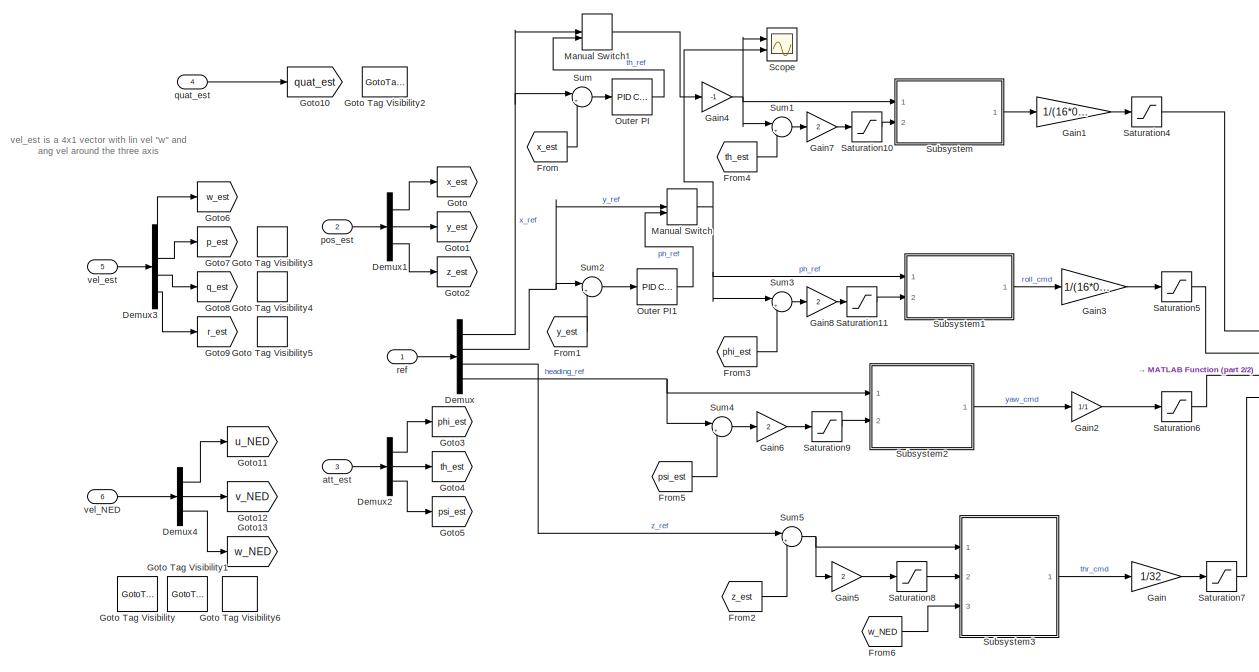
[diagram: root canvas - part 1/2, most of the canvas]
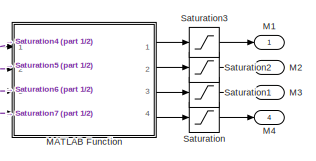
[diagram: root canvas - part 2/2, middle right region]
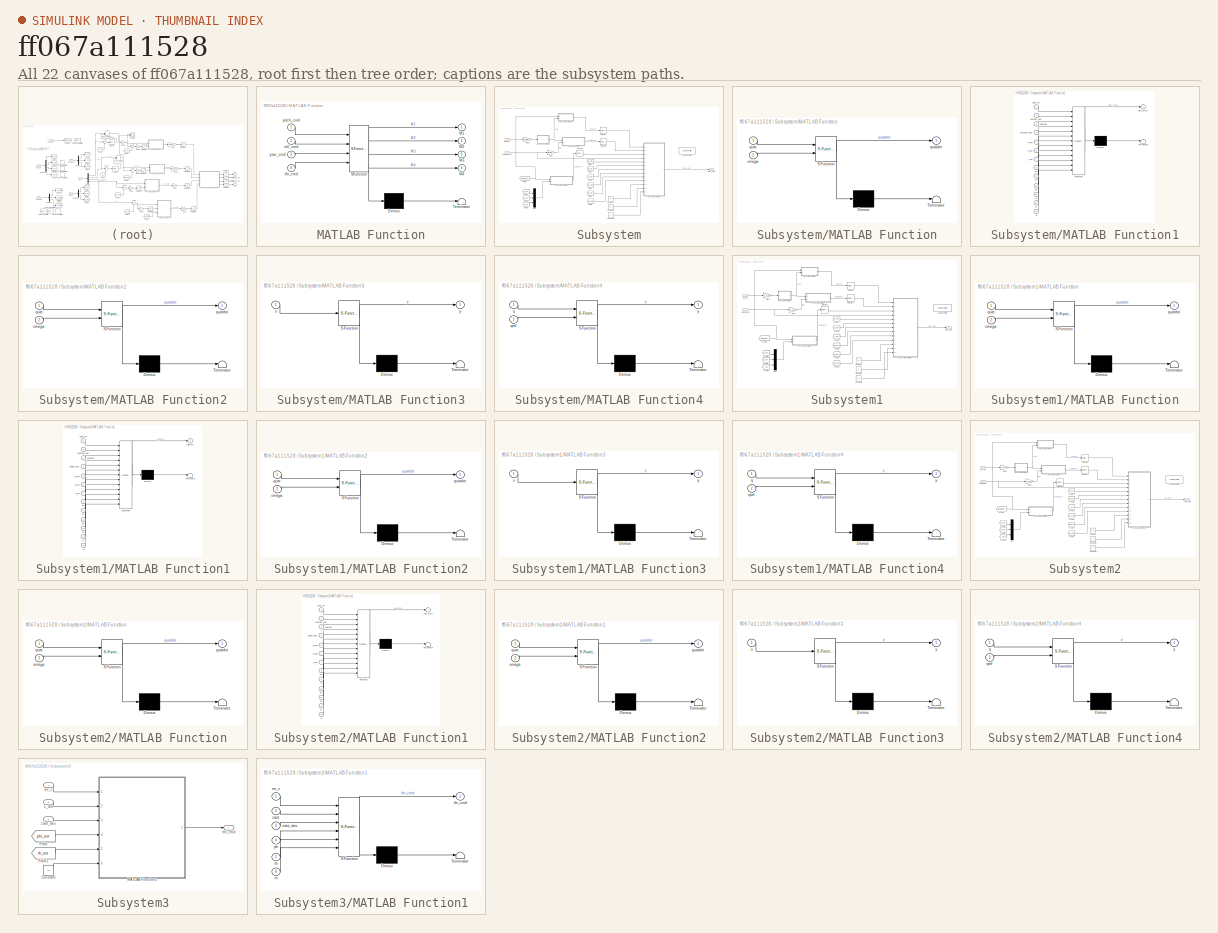
[diagram: thumbnail index - all 22 canvases of the model, root first then tree order]
MODEL slx_ff067a111528
KIND model
CONFIG AbsTol = auto
CONFIG EnableMultiTasking = off
CONFIG FixedStep = 0.01
CONFIG MaxStep = auto
CONFIG MinStep = auto
CONFIG RelTol = 1e-3
CONFIG SampleTimeConstraint = Unconstrained
CONFIG Solver = FixedStepDiscrete
CONFIG SolverName = FixedStepDiscrete
CONFIG StartTime = 0.0
CONFIG StopTime = 10.0
BLOCK [Demux] Demux
  DisplayOption = bar
  Ports = [1, 4]
BLOCK [Demux] Demux1
  DisplayOption = bar
  Outputs = 3
  Ports = [1, 3]
BLOCK [Demux] Demux2
  DisplayOption = bar
  Outputs = 3
  Ports = [1, 3]
BLOCK [Demux] Demux3
  DisplayOption = bar
  Ports = [1, 4]
BLOCK [Demux] Demux4
  DisplayOption = bar
  Outputs = 3
  Ports = [1, 3]
BLOCK [From] From
  GotoTag = x_est
BLOCK [From] From1
  GotoTag = y_est
BLOCK [From] From2
  GotoTag = z_est
BLOCK [From] From3
  GotoTag = phi_est
  TagVisibility = scoped
BLOCK [From] From4
  GotoTag = th_est
  TagVisibility = scoped
BLOCK [From] From5
  GotoTag = psi_est
  TagVisibility = scoped
BLOCK [From] From6
  GotoTag = w_NED
BLOCK [Gain] Gain
  Gain = 1/32
  OutDataTypeStr = Inherit: Inherit via internal rule
  ParamDataTypeStr = Inherit: Inherit via internal rule
  SaturateOnIntegerOverflow = off
BLOCK [Gain] Gain1
  Gain = 1/(16*0.2)
  OutDataTypeStr = Inherit: Inherit via internal rule
  ParamDataTypeStr = Inherit: Inherit via internal rule
  SaturateOnIntegerOverflow = off
BLOCK [Gain] Gain2
  Gain = 1/1
  OutDataTypeStr = Inherit: Inherit via internal rule
  ParamDataTypeStr = Inherit: Inherit via internal rule
  SaturateOnIntegerOverflow = off
BLOCK [Gain] Gain3
  Gain = 1/(16*0.2)
  OutDataTypeStr = Inherit: Inherit via internal rule
  ParamDataTypeStr = Inherit: Inherit via internal rule
  SaturateOnIntegerOverflow = off
BLOCK [Gain] Gain4
  Gain = -1
  OutDataTypeStr = Inherit: Inherit via internal rule
  ParamDataTypeStr = Inherit: Inherit via internal rule
  SaturateOnIntegerOverflow = off
BLOCK [Gain] Gain5
  Gain = 2
  OutDataTypeStr = Inherit: Inherit via internal rule
  ParamDataTypeStr = Inherit: Inherit via internal rule
  SaturateOnIntegerOverflow = off
BLOCK [Gain] Gain6
  Gain = 2
  OutDataTypeStr = Inherit: Inherit via internal rule
  ParamDataTypeStr = Inherit: Inherit via internal rule
  SaturateOnIntegerOverflow = off
BLOCK [Gain] Gain7
  Gain = 2
  OutDataTypeStr = Inherit: Inherit via internal rule
  ParamDataTypeStr = Inherit: Inherit via internal rule
  SaturateOnIntegerOverflow = off
BLOCK [Gain] Gain8
  Gain = 2
  OutDataTypeStr = Inherit: Inherit via internal rule
  ParamDataTypeStr = Inherit: Inherit via internal rule
  SaturateOnIntegerOverflow = off
BLOCK [Goto] Goto
  GotoTag = x_est
BLOCK [GotoTagVisibility] Goto Tag Visibility
  GotoTag = phi_est
BLOCK [GotoTagVisibility] Goto Tag Visibility1
  GotoTag = th_est
BLOCK [GotoTagVisibility] Goto Tag Visibility2
  GotoTag = quat_est
BLOCK [GotoTagVisibility] Goto Tag Visibility3
  GotoTag = p_est
BLOCK [GotoTagVisibility] Goto Tag Visibility4
  GotoTag = q_est
BLOCK [GotoTagVisibility] Goto Tag Visibility5
  GotoTag = r_est
BLOCK [GotoTagVisibility] Goto Tag Visibility6
  GotoTag = psi_est
BLOCK [Goto] Goto1
  GotoTag = y_est
BLOCK [Goto] Goto10
  GotoTag = quat_est
  TagVisibility = scoped
BLOCK [Goto] Goto11
  GotoTag = u_NED
BLOCK [Goto] Goto12
  GotoTag = v_NED
BLOCK [Goto] Goto13
  GotoTag = w_NED
BLOCK [Goto] Goto2
  GotoTag = z_est
BLOCK [Goto] Goto3
  GotoTag = phi_est
  TagVisibility = scoped
BLOCK [Goto] Goto4
  GotoTag = th_est
  TagVisibility = scoped
BLOCK [Goto] Goto5
  GotoTag = psi_est
  TagVisibility = scoped
BLOCK [Goto] Goto6
  GotoTag = w_est
BLOCK [Goto] Goto7
  GotoTag = p_est
  TagVisibility = scoped
BLOCK [Goto] Goto8
  GotoTag = q_est
  TagVisibility = scoped
BLOCK [Goto] Goto9
  GotoTag = r_est
  TagVisibility = scoped
BLOCK [Outport] M1
  IconDisplay = Port number
BLOCK [Outport] M2
  IconDisplay = Port number
  Port = 2
BLOCK [Outport] M3
  IconDisplay = Port number
  Port = 3
BLOCK [Outport] M4
  IconDisplay = Port number
  Port = 4
BLOCK [SubSystem] MATLAB Function
  ErrorFcn = Stateflow.Translate.translate
  PermitHierarchicalResolution = ExplicitOnly
  Ports = [4, 4]
  RequestExecContextInheritance = off
  SFBlockType = MATLAB Function
  TreatAsAtomicUnit = on
BLOCK [Demux] MATLAB Function/ Demux 
  Outputs = 1
  Ports = [1, 1]
BLOCK [S-Function] MATLAB Function/ SFunction 
  EnableBusSupport = on
  FunctionName = sf_sfun
  PortCounts = [4 5]
  Ports = [4, 5]
  SFcnIsStateOwnerBlock = off
  SFunctionDeploymentMode = off
  Tag = Stateflow S-Function feedback_control 2
BLOCK [Terminator] MATLAB Function/ Terminator 
BLOCK [Outport] MATLAB Function/M1
  IconDisplay = Port number
BLOCK [Outport] MATLAB Function/M2
  IconDisplay = Port number
  Port = 2
BLOCK [Outport] MATLAB Function/M3
  IconDisplay = Port number
  Port = 3
BLOCK [Outport] MATLAB Function/M4
  IconDisplay = Port number
  Port = 4
BLOCK [Inport] MATLAB Function/pitch_cmd
  IconDisplay = Port number
BLOCK [Inport] MATLAB Function/roll_cmd
  IconDisplay = Port number
  Port = 2
BLOCK [Inport] MATLAB Function/thr_cmd
  IconDisplay = Port number
  Port = 4
BLOCK [Inport] MATLAB Function/yaw_cmd
  IconDisplay = Port number
  Port = 3
BLOCK [ManualSwitch] Manual Switch
  CurrentSetting = 0
BLOCK [ManualSwitch] Manual Switch1
  CurrentSetting = 0
BLOCK [Reference] Outer PI  REF=simulink/Continuous/PID Controller
  Ports = [1, 1]
  SourceBlock = simulink/Continuous/PID Controller
  SourceProductBaseCode = SL
  SourceProductName = Simulink
  SourceType = PID 1dof
BLOCK [Reference] Outer PI1  REF=simulink/Continuous/PID Controller
  Ports = [1, 1]
  SourceBlock = simulink/Continuous/PID Controller
  SourceProductBaseCode = SL
  SourceProductName = Simulink
  SourceType = PID 1dof
BLOCK [Saturate] Saturation
  InputPortMap = u0
  LowerLimit = 0
  Ports = [1, 1]
  UpperLimit = 2000
BLOCK [Saturate] Saturation1
  InputPortMap = u0
  LowerLimit = 0
  Ports = [1, 1]
  UpperLimit = 2000
BLOCK [Saturate] Saturation10
  InputPortMap = u0
  LowerLimit = -1
  Ports = [1, 1]
  UpperLimit = 1
BLOCK [Saturate] Saturation11
  InputPortMap = u0
  LowerLimit = -1
  Ports = [1, 1]
  UpperLimit = 1
BLOCK [Saturate] Saturation2
  InputPortMap = u0
  LowerLimit = 0
  Ports = [1, 1]
  UpperLimit = 2000
BLOCK [Saturate] Saturation3
  InputPortMap = u0
  LowerLimit = 1000
  Ports = [1, 1]
  UpperLimit = 2000
BLOCK [Saturate] Saturation4
  InputPortMap = u0
  LowerLimit = -1
  Ports = [1, 1]
  UpperLimit = 1
BLOCK [Saturate] Saturation5
  InputPortMap = u0
  LowerLimit = -1
  Ports = [1, 1]
  UpperLimit = 1
BLOCK [Saturate] Saturation6
  InputPortMap = u0
  LowerLimit = -1
  Ports = [1, 1]
  UpperLimit = 1
BLOCK [Saturate] Saturation7
  InputPortMap = u0
  LowerLimit = 0
  Ports = [1, 1]
  UpperLimit = 1
BLOCK [Saturate] Saturation8
  InputPortMap = u0
  LowerLimit = -10
  Ports = [1, 1]
  UpperLimit = 10
BLOCK [Saturate] Saturation9
  InputPortMap = u0
  Ports = [1, 1]
BLOCK [Scope] Scope
  Floating = off
  NumInputPorts = 2
  Ports = [2]
  ScopeSpecificationString = Simulink.scopes.TimeScopeBlockCfg('CurrentConfiguration', extmgr.ConfigurationSet(extmgr.Configuration('Core','General UI',true),extmgr.Configuration('Core','Source UI',true),extmgr.Configuration('Sources','WiredSimulink',true),extmgr.Configuration('Visuals','Time Domain',true,'SerializedDisplays',{struct('MinYLimReal','-0.63697','MaxYLimReal','0.49676','YLabelReal','','MinYLimMag','0.00000','MaxY...<+1390ch>
BLOCK [SubSystem] Subsystem
  Ports = [2, 1]
  RequestExecContextInheritance = off
BLOCK [Constant] Subsystem/Constant
  Value = Jx
BLOCK [Constant] Subsystem/Constant1
  Value = Jy
BLOCK [Constant] Subsystem/Constant2
  Value = Jz
BLOCK [From] Subsystem/From
  GotoTag = p_est
  TagVisibility = scoped
BLOCK [From] Subsystem/From1
  GotoTag = q_est
  TagVisibility = scoped
BLOCK [From] Subsystem/From2
  GotoTag = r_est
  TagVisibility = scoped
BLOCK [From] Subsystem/From3
  GotoTag = ph_est
BLOCK [From] Subsystem/From4
  GotoTag = th_est
  TagVisibility = scoped
BLOCK [From] Subsystem/From5
  GotoTag = psi_est
  TagVisibility = scoped
BLOCK [From] Subsystem/From6
  GotoTag = p_est
  TagVisibility = scoped
BLOCK [From] Subsystem/From7
  GotoTag = q_est
  TagVisibility = scoped
BLOCK [From] Subsystem/From8
  GotoTag = r_est
  TagVisibility = scoped
BLOCK [From] Subsystem/From9
  GotoTag = quat_est
  TagVisibility = scoped
BLOCK [Gain] Subsystem/Gain1
  Gain = [0;1;0]
  OutDataTypeStr = Inherit: Inherit via internal rule
  ParamDataTypeStr = Inherit: Inherit via internal rule
  SaturateOnIntegerOverflow = off
BLOCK [Gain] Subsystem/Gain2
  Gain = [0,1,0]
  OutDataTypeStr = Inherit: Inherit via internal rule
  ParamDataTypeStr = Inherit: Inherit via internal rule
  SaturateOnIntegerOverflow = off
BLOCK [Reference] Subsystem/Lowpass Filter  REF=dspfdesign/Lowpass Filter
  Ports = [1, 1]
  SourceBlock = dspfdesign/Lowpass Filter
  SourceProductBaseCode = DS
  SourceProductName = DSP System Toolbox
  SourceType = dsp.LowpassFilter
BLOCK [SubSystem] Subsystem/MATLAB Function
  ErrorFcn = Stateflow.Translate.translate
  PermitHierarchicalResolution = ExplicitOnly
  Ports = [2, 1]
  RequestExecContextInheritance = off
  SFBlockType = MATLAB Function
  TreatAsAtomicUnit = on
BLOCK [Demux] Subsystem/MATLAB Function/ Demux 
  Outputs = 1
  Ports = [1, 1]
BLOCK [S-Function] Subsystem/MATLAB Function/ SFunction 
  EnableBusSupport = on
  FunctionName = sf_sfun
  PortCounts = [2 2]
  Ports = [2, 2]
  SFcnIsStateOwnerBlock = off
  SFunctionDeploymentMode = off
  Tag = Stateflow S-Function feedback_control 1
BLOCK [Terminator] Subsystem/MATLAB Function/ Terminator 
BLOCK [Inport] Subsystem/MATLAB Function/omega
  IconDisplay = Port number
  Port = 2
BLOCK [Inport] Subsystem/MATLAB Function/quat
  IconDisplay = Port number
BLOCK [Outport] Subsystem/MATLAB Function/quatdot
  IconDisplay = Port number
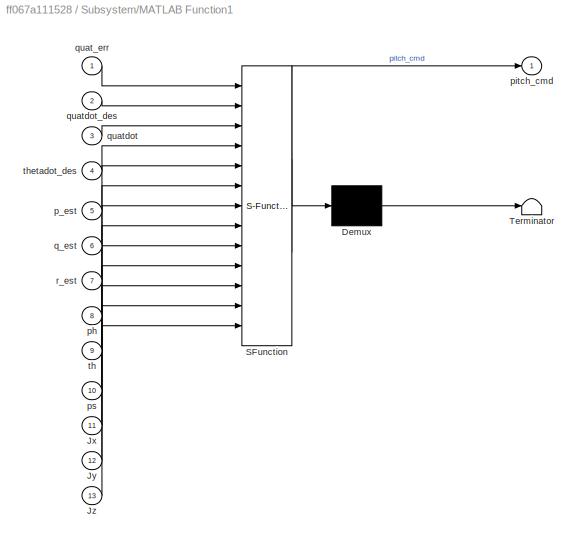
BLOCK [SubSystem] Subsystem/MATLAB Function1
  ErrorFcn = Stateflow.Translate.translate
  PermitHierarchicalResolution = ExplicitOnly
  Ports = [13, 1]
  RequestExecContextInheritance = off
  SFBlockType = MATLAB Function
  TreatAsAtomicUnit = on
BLOCK [Demux] Subsystem/MATLAB Function1/ Demux 
  Outputs = 1
  Ports = [1, 1]
BLOCK [S-Function] Subsystem/MATLAB Function1/ SFunction 
  EnableBusSupport = on
  FunctionName = sf_sfun
  PortCounts = [13 2]
  Ports = [13, 2]
  SFcnIsStateOwnerBlock = off
  SFunctionDeploymentMode = off
  Tag = Stateflow S-Function feedback_control 10
BLOCK [Terminator] Subsystem/MATLAB Function1/ Terminator 
BLOCK [Inport] Subsystem/MATLAB Function1/Jx
  IconDisplay = Port number
  Port = 11
BLOCK [Inport] Subsystem/MATLAB Function1/Jy
  IconDisplay = Port number
  Port = 12
BLOCK [Inport] Subsystem/MATLAB Function1/Jz
  IconDisplay = Port number
  Port = 13
BLOCK [Inport] Subsystem/MATLAB Function1/p_est
  IconDisplay = Port number
  Port = 5
BLOCK [Inport] Subsystem/MATLAB Function1/ph
  IconDisplay = Port number
  Port = 8
BLOCK [Outport] Subsystem/MATLAB Function1/pitch_cmd
  IconDisplay = Port number
BLOCK [Inport] Subsystem/MATLAB Function1/ps
  IconDisplay = Port number
  Port = 10
BLOCK [Inport] Subsystem/MATLAB Function1/q_est
  IconDisplay = Port number
  Port = 6
BLOCK [Inport] Subsystem/MATLAB Function1/quat_err
  IconDisplay = Port number
BLOCK [Inport] Subsystem/MATLAB Function1/quatdot
  IconDisplay = Port number
  Port = 3
BLOCK [Inport] Subsystem/MATLAB Function1/quatdot_des
  IconDisplay = Port number
  Port = 2
BLOCK [Inport] Subsystem/MATLAB Function1/r_est
  IconDisplay = Port number
  Port = 7
BLOCK [Inport] Subsystem/MATLAB Function1/th
  IconDisplay = Port number
  Port = 9
BLOCK [Inport] Subsystem/MATLAB Function1/thetadot_des
  IconDisplay = Port number
  Port = 4
BLOCK [SubSystem] Subsystem/MATLAB Function2
  ErrorFcn = Stateflow.Translate.translate
  PermitHierarchicalResolution = ExplicitOnly
  Ports = [2, 1]
  RequestExecContextInheritance = off
  SFBlockType = MATLAB Function
  TreatAsAtomicUnit = on
BLOCK [Demux] Subsystem/MATLAB Function2/ Demux 
  Outputs = 1
  Ports = [1, 1]
BLOCK [S-Function] Subsystem/MATLAB Function2/ SFunction 
  EnableBusSupport = on
  FunctionName = sf_sfun
  PortCounts = [2 2]
  Ports = [2, 2]
  SFcnIsStateOwnerBlock = off
  SFunctionDeploymentMode = off
  Tag = Stateflow S-Function feedback_control 11
BLOCK [Terminator] Subsystem/MATLAB Function2/ Terminator 
BLOCK [Inport] Subsystem/MATLAB Function2/omega
  IconDisplay = Port number
  Port = 2
BLOCK [Inport] Subsystem/MATLAB Function2/quat
  IconDisplay = Port number
BLOCK [Outport] Subsystem/MATLAB Function2/quatdot
  IconDisplay = Port number
BLOCK [SubSystem] Subsystem/MATLAB Function3
  ErrorFcn = Stateflow.Translate.translate
  PermitHierarchicalResolution = ExplicitOnly
  Ports = [1, 1]
  RequestExecContextInheritance = off
  SFBlockType = MATLAB Function
  TreatAsAtomicUnit = on
BLOCK [Demux] Subsystem/MATLAB Function3/ Demux 
  Outputs = 1
  Ports = [1, 1]
BLOCK [S-Function] Subsystem/MATLAB Function3/ SFunction 
  EnableBusSupport = on
  FunctionName = sf_sfun
  PortCounts = [1 2]
  Ports = [1, 2]
  SFcnIsStateOwnerBlock = off
  SFunctionDeploymentMode = off
  Tag = Stateflow S-Function feedback_control 12
BLOCK [Terminator] Subsystem/MATLAB Function3/ Terminator 
BLOCK [Inport] Subsystem/MATLAB Function3/u
  IconDisplay = Port number
BLOCK [Outport] Subsystem/MATLAB Function3/y
  IconDisplay = Port number
BLOCK [SubSystem] Subsystem/MATLAB Function4
  ErrorFcn = Stateflow.Translate.translate
  PermitHierarchicalResolution = ExplicitOnly
  Ports = [2, 1]
  RequestExecContextInheritance = off
  SFBlockType = MATLAB Function
  TreatAsAtomicUnit = on
BLOCK [Demux] Subsystem/MATLAB Function4/ Demux 
  Outputs = 1
  Ports = [1, 1]
BLOCK [S-Function] Subsystem/MATLAB Function4/ SFunction 
  EnableBusSupport = on
  FunctionName = sf_sfun
  PortCounts = [2 2]
  Ports = [2, 2]
  SFcnIsStateOwnerBlock = off
  SFunctionDeploymentMode = off
  Tag = Stateflow S-Function feedback_control 13
BLOCK [Terminator] Subsystem/MATLAB Function4/ Terminator 
BLOCK [Inport] Subsystem/MATLAB Function4/q
  IconDisplay = Port number
BLOCK [Inport] Subsystem/MATLAB Function4/qref
  IconDisplay = Port number
  Port = 2
BLOCK [Outport] Subsystem/MATLAB Function4/y
  IconDisplay = Port number
BLOCK [Mux] Subsystem/Mux
  DisplayOption = bar
  Inputs = 3
  Ports = [3, 1]
BLOCK [Selector] Subsystem/Selector
  IndexOptions = Index vector (dialog)
  Indices = 3
  InputPortWidth = 4
  OutputSizes = 1
  Ports = [1, 1]
BLOCK [Selector] Subsystem/Selector1
  IndexOptions = Index vector (dialog)
  Indices = 3
  InputPortWidth = 4
  OutputSizes = 1
  Ports = [1, 1]
BLOCK [Selector] Subsystem/Selector2
  IndexOptions = Index vector (dialog)
  Indices = 3
  InputPortWidth = 4
  OutputSizes = 1
  Ports = [1, 1]
BLOCK [Outport] Subsystem/pitch_cmd
  IconDisplay = Port number
BLOCK [Inport] Subsystem/theta_ref
  IconDisplay = Port number
BLOCK [Inport] Subsystem/thetadot_des
  IconDisplay = Port number
  Port = 2
BLOCK [SubSystem] Subsystem1
  Ports = [2, 1]
  RequestExecContextInheritance = off
BLOCK [Constant] Subsystem1/Constant
  Value = Jx
BLOCK [Constant] Subsystem1/Constant1
  Value = Jy
BLOCK [Constant] Subsystem1/Constant2
  Value = Jz
BLOCK [From] Subsystem1/From
  GotoTag = p_est
  TagVisibility = scoped
BLOCK [From] Subsystem1/From1
  GotoTag = q_est
  TagVisibility = scoped
BLOCK [From] Subsystem1/From2
  GotoTag = r_est
  TagVisibility = scoped
BLOCK [From] Subsystem1/From3
  GotoTag = ph_est
BLOCK [From] Subsystem1/From4
  GotoTag = th_est
  TagVisibility = scoped
BLOCK [From] Subsystem1/From5
  GotoTag = psi_est
  TagVisibility = scoped
BLOCK [From] Subsystem1/From6
  GotoTag = p_est
  TagVisibility = scoped
BLOCK [From] Subsystem1/From7
  GotoTag = q_est
  TagVisibility = scoped
BLOCK [From] Subsystem1/From8
  GotoTag = r_est
  TagVisibility = scoped
BLOCK [From] Subsystem1/From9
  GotoTag = quat_est
  TagVisibility = scoped
BLOCK [Gain] Subsystem1/Gain1
  Gain = [1;0;0]
  OutDataTypeStr = Inherit: Inherit via internal rule
  ParamDataTypeStr = Inherit: Inherit via internal rule
  SaturateOnIntegerOverflow = off
BLOCK [Gain] Subsystem1/Gain2
  Gain = [1,0,0]
  OutDataTypeStr = Inherit: Inherit via internal rule
  ParamDataTypeStr = Inherit: Inherit via internal rule
  SaturateOnIntegerOverflow = off
BLOCK [Reference] Subsystem1/Lowpass Filter  REF=dspfdesign/Lowpass Filter
  Ports = [1, 1]
  SourceBlock = dspfdesign/Lowpass Filter
  SourceProductBaseCode = DS
  SourceProductName = DSP System Toolbox
  SourceType = dsp.LowpassFilter
BLOCK [SubSystem] Subsystem1/MATLAB Function
  ErrorFcn = Stateflow.Translate.translate
  PermitHierarchicalResolution = ExplicitOnly
  Ports = [2, 1]
  RequestExecContextInheritance = off
  SFBlockType = MATLAB Function
  TreatAsAtomicUnit = on
BLOCK [Demux] Subsystem1/MATLAB Function/ Demux 
  Outputs = 1
  Ports = [1, 1]
BLOCK [S-Function] Subsystem1/MATLAB Function/ SFunction 
  EnableBusSupport = on
  FunctionName = sf_sfun
  PortCounts = [2 2]
  Ports = [2, 2]
  SFcnIsStateOwnerBlock = off
  SFunctionDeploymentMode = off
  Tag = Stateflow S-Function feedback_control 3
BLOCK [Terminator] Subsystem1/MATLAB Function/ Terminator 
BLOCK [Inport] Subsystem1/MATLAB Function/omega
  IconDisplay = Port number
  Port = 2
BLOCK [Inport] Subsystem1/MATLAB Function/quat
  IconDisplay = Port number
BLOCK [Outport] Subsystem1/MATLAB Function/quatdot
  IconDisplay = Port number
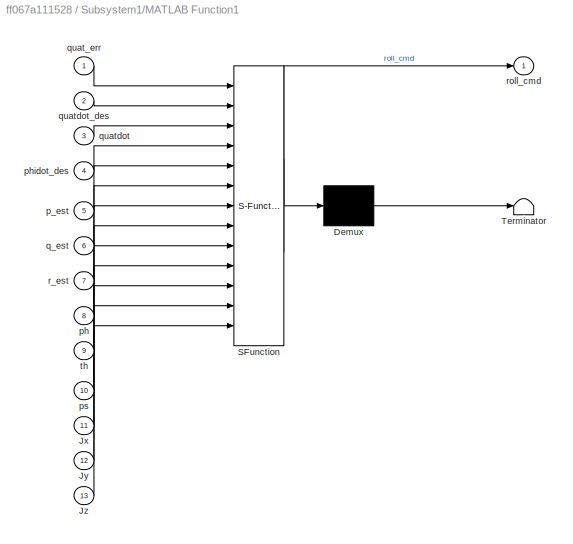
BLOCK [SubSystem] Subsystem1/MATLAB Function1
  ErrorFcn = Stateflow.Translate.translate
  PermitHierarchicalResolution = ExplicitOnly
  Ports = [13, 1]
  RequestExecContextInheritance = off
  SFBlockType = MATLAB Function
  TreatAsAtomicUnit = on
BLOCK [Demux] Subsystem1/MATLAB Function1/ Demux 
  Outputs = 1
  Ports = [1, 1]
BLOCK [S-Function] Subsystem1/MATLAB Function1/ SFunction 
  EnableBusSupport = on
  FunctionName = sf_sfun
  PortCounts = [13 2]
  Ports = [13, 2]
  SFcnIsStateOwnerBlock = off
  SFunctionDeploymentMode = off
  Tag = Stateflow S-Function feedback_control 14
BLOCK [Terminator] Subsystem1/MATLAB Function1/ Terminator 
BLOCK [Inport] Subsystem1/MATLAB Function1/Jx
  IconDisplay = Port number
  Port = 11
BLOCK [Inport] Subsystem1/MATLAB Function1/Jy
  IconDisplay = Port number
  Port = 12
BLOCK [Inport] Subsystem1/MATLAB Function1/Jz
  IconDisplay = Port number
  Port = 13
BLOCK [Inport] Subsystem1/MATLAB Function1/p_est
  IconDisplay = Port number
  Port = 5
BLOCK [Inport] Subsystem1/MATLAB Function1/ph
  IconDisplay = Port number
  Port = 8
BLOCK [Inport] Subsystem1/MATLAB Function1/phidot_des
  IconDisplay = Port number
  Port = 4
BLOCK [Inport] Subsystem1/MATLAB Function1/ps
  IconDisplay = Port number
  Port = 10
BLOCK [Inport] Subsystem1/MATLAB Function1/q_est
  IconDisplay = Port number
  Port = 6
BLOCK [Inport] Subsystem1/MATLAB Function1/quat_err
  IconDisplay = Port number
BLOCK [Inport] Subsystem1/MATLAB Function1/quatdot
  IconDisplay = Port number
  Port = 3
BLOCK [Inport] Subsystem1/MATLAB Function1/quatdot_des
  IconDisplay = Port number
  Port = 2
BLOCK [Inport] Subsystem1/MATLAB Function1/r_est
  IconDisplay = Port number
  Port = 7
BLOCK [Outport] Subsystem1/MATLAB Function1/roll_cmd
  IconDisplay = Port number
BLOCK [Inport] Subsystem1/MATLAB Function1/th
  IconDisplay = Port number
  Port = 9
BLOCK [SubSystem] Subsystem1/MATLAB Function2
  ErrorFcn = Stateflow.Translate.translate
  PermitHierarchicalResolution = ExplicitOnly
  Ports = [2, 1]
  RequestExecContextInheritance = off
  SFBlockType = MATLAB Function
  TreatAsAtomicUnit = on
BLOCK [Demux] Subsystem1/MATLAB Function2/ Demux 
  Outputs = 1
  Ports = [1, 1]
BLOCK [S-Function] Subsystem1/MATLAB Function2/ SFunction 
  EnableBusSupport = on
  FunctionName = sf_sfun
  PortCounts = [2 2]
  Ports = [2, 2]
  SFcnIsStateOwnerBlock = off
  SFunctionDeploymentMode = off
  Tag = Stateflow S-Function feedback_control 15
BLOCK [Terminator] Subsystem1/MATLAB Function2/ Terminator 
BLOCK [Inport] Subsystem1/MATLAB Function2/omega
  IconDisplay = Port number
  Port = 2
BLOCK [Inport] Subsystem1/MATLAB Function2/quat
  IconDisplay = Port number
BLOCK [Outport] Subsystem1/MATLAB Function2/quatdot
  IconDisplay = Port number
BLOCK [SubSystem] Subsystem1/MATLAB Function3
  ErrorFcn = Stateflow.Translate.translate
  PermitHierarchicalResolution = ExplicitOnly
  Ports = [1, 1]
  RequestExecContextInheritance = off
  SFBlockType = MATLAB Function
  TreatAsAtomicUnit = on
BLOCK [Demux] Subsystem1/MATLAB Function3/ Demux 
  Outputs = 1
  Ports = [1, 1]
BLOCK [S-Function] Subsystem1/MATLAB Function3/ SFunction 
  EnableBusSupport = on
  FunctionName = sf_sfun
  PortCounts = [1 2]
  Ports = [1, 2]
  SFcnIsStateOwnerBlock = off
  SFunctionDeploymentMode = off
  Tag = Stateflow S-Function feedback_control 16
BLOCK [Terminator] Subsystem1/MATLAB Function3/ Terminator 
BLOCK [Inport] Subsystem1/MATLAB Function3/u
  IconDisplay = Port number
BLOCK [Outport] Subsystem1/MATLAB Function3/y
  IconDisplay = Port number
BLOCK [SubSystem] Subsystem1/MATLAB Function4
  ErrorFcn = Stateflow.Translate.translate
  PermitHierarchicalResolution = ExplicitOnly
  Ports = [2, 1]
  RequestExecContextInheritance = off
  SFBlockType = MATLAB Function
  TreatAsAtomicUnit = on
BLOCK [Demux] Subsystem1/MATLAB Function4/ Demux 
  Outputs = 1
  Ports = [1, 1]
BLOCK [S-Function] Subsystem1/MATLAB Function4/ SFunction 
  EnableBusSupport = on
  FunctionName = sf_sfun
  PortCounts = [2 2]
  Ports = [2, 2]
  SFcnIsStateOwnerBlock = off
  SFunctionDeploymentMode = off
  Tag = Stateflow S-Function feedback_control 17
BLOCK [Terminator] Subsystem1/MATLAB Function4/ Terminator 
BLOCK [Inport] Subsystem1/MATLAB Function4/q
  IconDisplay = Port number
BLOCK [Inport] Subsystem1/MATLAB Function4/qref
  IconDisplay = Port number
  Port = 2
BLOCK [Outport] Subsystem1/MATLAB Function4/y
  IconDisplay = Port number
BLOCK [Mux] Subsystem1/Mux
  DisplayOption = bar
  Inputs = 3
  Ports = [3, 1]
BLOCK [Selector] Subsystem1/Selector
  IndexOptions = Index vector (dialog)
  Indices = 2
  InputPortWidth = 4
  OutputSizes = 1
  Ports = [1, 1]
BLOCK [Selector] Subsystem1/Selector1
  IndexOptions = Index vector (dialog)
  Indices = 2
  InputPortWidth = 4
  OutputSizes = 1
  Ports = [1, 1]
BLOCK [Selector] Subsystem1/Selector2
  IndexOptions = Index vector (dialog)
  Indices = 2
  InputPortWidth = 4
  OutputSizes = 1
  Ports = [1, 1]
BLOCK [Inport] Subsystem1/phi_ref
  IconDisplay = Port number
BLOCK [Inport] Subsystem1/phidot_des
  IconDisplay = Port number
  Port = 2
BLOCK [Outport] Subsystem1/pitch_cmd
  IconDisplay = Port number
BLOCK [SubSystem] Subsystem2
  Ports = [2, 1]
  RequestExecContextInheritance = off
BLOCK [Constant] Subsystem2/Constant
  Value = Jx
BLOCK [Constant] Subsystem2/Constant1
  Value = Jy
BLOCK [Constant] Subsystem2/Constant2
  Value = Jz
BLOCK [From] Subsystem2/From
  GotoTag = p_est
  TagVisibility = scoped
BLOCK [From] Subsystem2/From1
  GotoTag = q_est
  TagVisibility = scoped
BLOCK [From] Subsystem2/From2
  GotoTag = r_est
  TagVisibility = scoped
BLOCK [From] Subsystem2/From3
  GotoTag = ph_est
BLOCK [From] Subsystem2/From4
  GotoTag = th_est
  TagVisibility = scoped
BLOCK [From] Subsystem2/From5
  GotoTag = psi_est
  TagVisibility = scoped
BLOCK [From] Subsystem2/From6
  GotoTag = p_est
  TagVisibility = scoped
BLOCK [From] Subsystem2/From7
  GotoTag = q_est
  TagVisibility = scoped
BLOCK [From] Subsystem2/From8
  GotoTag = r_est
  TagVisibility = scoped
BLOCK [From] Subsystem2/From9
  GotoTag = quat_est
  TagVisibility = scoped
BLOCK [Gain] Subsystem2/Gain1
  Gain = [0;0;1]
  OutDataTypeStr = Inherit: Inherit via internal rule
  ParamDataTypeStr = Inherit: Inherit via internal rule
  SaturateOnIntegerOverflow = off
BLOCK [Gain] Subsystem2/Gain2
  Gain = [0,0,1]
  OutDataTypeStr = Inherit: Inherit via internal rule
  ParamDataTypeStr = Inherit: Inherit via internal rule
  SaturateOnIntegerOverflow = off
BLOCK [Reference] Subsystem2/Lowpass Filter  REF=dspfdesign/Lowpass Filter
  Ports = [1, 1]
  SourceBlock = dspfdesign/Lowpass Filter
  SourceProductBaseCode = DS
  SourceProductName = DSP System Toolbox
  SourceType = dsp.LowpassFilter
BLOCK [SubSystem] Subsystem2/MATLAB Function
  ErrorFcn = Stateflow.Translate.translate
  PermitHierarchicalResolution = ExplicitOnly
  Ports = [2, 1]
  RequestExecContextInheritance = off
  SFBlockType = MATLAB Function
  TreatAsAtomicUnit = on
BLOCK [Demux] Subsystem2/MATLAB Function/ Demux 
  Outputs = 1
  Ports = [1, 1]
BLOCK [S-Function] Subsystem2/MATLAB Function/ SFunction 
  EnableBusSupport = on
  FunctionName = sf_sfun
  PortCounts = [2 2]
  Ports = [2, 2]
  SFcnIsStateOwnerBlock = off
  SFunctionDeploymentMode = off
  Tag = Stateflow S-Function feedback_control 6
BLOCK [Terminator] Subsystem2/MATLAB Function/ Terminator 
BLOCK [Inport] Subsystem2/MATLAB Function/omega
  IconDisplay = Port number
  Port = 2
BLOCK [Inport] Subsystem2/MATLAB Function/quat
  IconDisplay = Port number
BLOCK [Outport] Subsystem2/MATLAB Function/quatdot
  IconDisplay = Port number
BLOCK [SubSystem] Subsystem2/MATLAB Function1
  ErrorFcn = Stateflow.Translate.translate
  PermitHierarchicalResolution = ExplicitOnly
  Ports = [13, 1]
  RequestExecContextInheritance = off
  SFBlockType = MATLAB Function
  TreatAsAtomicUnit = on
BLOCK [Demux] Subsystem2/MATLAB Function1/ Demux 
  Outputs = 1
  Ports = [1, 1]
BLOCK [S-Function] Subsystem2/MATLAB Function1/ SFunction 
  EnableBusSupport = on
  FunctionName = sf_sfun
  PortCounts = [13 2]
  Ports = [13, 2]
  SFcnIsStateOwnerBlock = off
  SFunctionDeploymentMode = off
  Tag = Stateflow S-Function feedback_control 4
BLOCK [Terminator] Subsystem2/MATLAB Function1/ Terminator 
BLOCK [Inport] Subsystem2/MATLAB Function1/Jx
  IconDisplay = Port number
  Port = 11
BLOCK [Inport] Subsystem2/MATLAB Function1/Jy
  IconDisplay = Port number
  Port = 12
BLOCK [Inport] Subsystem2/MATLAB Function1/Jz
  IconDisplay = Port number
  Port = 13
BLOCK [Inport] Subsystem2/MATLAB Function1/p_est
  IconDisplay = Port number
  Port = 5
BLOCK [Inport] Subsystem2/MATLAB Function1/ph
  IconDisplay = Port number
  Port = 8
BLOCK [Inport] Subsystem2/MATLAB Function1/ps
  IconDisplay = Port number
  Port = 10
BLOCK [Inport] Subsystem2/MATLAB Function1/psidot_des
  IconDisplay = Port number
  Port = 4
BLOCK [Inport] Subsystem2/MATLAB Function1/q_est
  IconDisplay = Port number
  Port = 6
BLOCK [Inport] Subsystem2/MATLAB Function1/quat_err
  IconDisplay = Port number
BLOCK [Inport] Subsystem2/MATLAB Function1/quatdot
  IconDisplay = Port number
  Port = 3
BLOCK [Inport] Subsystem2/MATLAB Function1/quatdot_des
  IconDisplay = Port number
  Port = 2
BLOCK [Inport] Subsystem2/MATLAB Function1/r_est
  IconDisplay = Port number
  Port = 7
BLOCK [Inport] Subsystem2/MATLAB Function1/th
  IconDisplay = Port number
  Port = 9
BLOCK [Outport] Subsystem2/MATLAB Function1/yaw_cmd
  IconDisplay = Port number
BLOCK [SubSystem] Subsystem2/MATLAB Function2
  ErrorFcn = Stateflow.Translate.translate
  PermitHierarchicalResolution = ExplicitOnly
  Ports = [2, 1]
  RequestExecContextInheritance = off
  SFBlockType = MATLAB Function
  TreatAsAtomicUnit = on
BLOCK [Demux] Subsystem2/MATLAB Function2/ Demux 
  Outputs = 1
  Ports = [1, 1]
BLOCK [S-Function] Subsystem2/MATLAB Function2/ SFunction 
  EnableBusSupport = on
  FunctionName = sf_sfun
  PortCounts = [2 2]
  Ports = [2, 2]
  SFcnIsStateOwnerBlock = off
  SFunctionDeploymentMode = off
  Tag = Stateflow S-Function feedback_control 7
BLOCK [Terminator] Subsystem2/MATLAB Function2/ Terminator 
BLOCK [Inport] Subsystem2/MATLAB Function2/omega
  IconDisplay = Port number
  Port = 2
BLOCK [Inport] Subsystem2/MATLAB Function2/quat
  IconDisplay = Port number
BLOCK [Outport] Subsystem2/MATLAB Function2/quatdot
  IconDisplay = Port number
BLOCK [SubSystem] Subsystem2/MATLAB Function3
  ErrorFcn = Stateflow.Translate.translate
  PermitHierarchicalResolution = ExplicitOnly
  Ports = [1, 1]
  RequestExecContextInheritance = off
  SFBlockType = MATLAB Function
  TreatAsAtomicUnit = on
BLOCK [Demux] Subsystem2/MATLAB Function3/ Demux 
  Outputs = 1
  Ports = [1, 1]
BLOCK [S-Function] Subsystem2/MATLAB Function3/ SFunction 
  EnableBusSupport = on
  FunctionName = sf_sfun
  PortCounts = [1 2]
  Ports = [1, 2]
  SFcnIsStateOwnerBlock = off
  SFunctionDeploymentMode = off
  Tag = Stateflow S-Function feedback_control 8
BLOCK [Terminator] Subsystem2/MATLAB Function3/ Terminator 
BLOCK [Inport] Subsystem2/MATLAB Function3/u
  IconDisplay = Port number
BLOCK [Outport] Subsystem2/MATLAB Function3/y
  IconDisplay = Port number
BLOCK [SubSystem] Subsystem2/MATLAB Function4
  ErrorFcn = Stateflow.Translate.translate
  PermitHierarchicalResolution = ExplicitOnly
  Ports = [2, 1]
  RequestExecContextInheritance = off
  SFBlockType = MATLAB Function
  TreatAsAtomicUnit = on
BLOCK [Demux] Subsystem2/MATLAB Function4/ Demux 
  Outputs = 1
  Ports = [1, 1]
BLOCK [S-Function] Subsystem2/MATLAB Function4/ SFunction 
  EnableBusSupport = on
  FunctionName = sf_sfun
  PortCounts = [2 2]
  Ports = [2, 2]
  SFcnIsStateOwnerBlock = off
  SFunctionDeploymentMode = off
  Tag = Stateflow S-Function feedback_control 9
BLOCK [Terminator] Subsystem2/MATLAB Function4/ Terminator 
BLOCK [Inport] Subsystem2/MATLAB Function4/q
  IconDisplay = Port number
BLOCK [Inport] Subsystem2/MATLAB Function4/qref
  IconDisplay = Port number
  Port = 2
BLOCK [Outport] Subsystem2/MATLAB Function4/y
  IconDisplay = Port number
BLOCK [Mux] Subsystem2/Mux
  DisplayOption = bar
  Inputs = 3
  Ports = [3, 1]
BLOCK [Selector] Subsystem2/Selector
  IndexOptions = Index vector (dialog)
  Indices = 4
  InputPortWidth = 4
  OutputSizes = 1
  Ports = [1, 1]
BLOCK [Selector] Subsystem2/Selector1
  IndexOptions = Index vector (dialog)
  Indices = 4
  InputPortWidth = 4
  OutputSizes = 1
  Ports = [1, 1]
BLOCK [Selector] Subsystem2/Selector2
  IndexOptions = Index vector (dialog)
  Indices = 4
  InputPortWidth = 4
  OutputSizes = 1
  Ports = [1, 1]
BLOCK [Inport] Subsystem2/psi_ref
  IconDisplay = Port number
BLOCK [Inport] Subsystem2/psidot_des
  IconDisplay = Port number
  Port = 2
BLOCK [Outport] Subsystem2/yaw_cmd
  IconDisplay = Port number
BLOCK [SubSystem] Subsystem3
  Ports = [3, 1]
  RequestExecContextInheritance = off
BLOCK [Constant] Subsystem3/Constant
  Value = m
BLOCK [From] Subsystem3/From
  GotoTag = phi_est
  TagVisibility = scoped
BLOCK [From] Subsystem3/From1
  GotoTag = th_est
  TagVisibility = scoped
BLOCK [SubSystem] Subsystem3/MATLAB Function1
  ErrorFcn = Stateflow.Translate.translate
  PermitHierarchicalResolution = ExplicitOnly
  Ports = [6, 1]
  RequestExecContextInheritance = off
  SFBlockType = MATLAB Function
  TreatAsAtomicUnit = on
BLOCK [Demux] Subsystem3/MATLAB Function1/ Demux 
  Outputs = 1
  Ports = [1, 1]
BLOCK [S-Function] Subsystem3/MATLAB Function1/ SFunction 
  EnableBusSupport = on
  FunctionName = sf_sfun
  PortCounts = [6 2]
  Ports = [6, 2]
  SFcnIsStateOwnerBlock = off
  SFunctionDeploymentMode = off
  Tag = Stateflow S-Function feedback_control 5
BLOCK [Terminator] Subsystem3/MATLAB Function1/ Terminator 
BLOCK [Inport] Subsystem3/MATLAB Function1/err_z
  IconDisplay = Port number
BLOCK [Inport] Subsystem3/MATLAB Function1/m
  IconDisplay = Port number
  Port = 6
BLOCK [Inport] Subsystem3/MATLAB Function1/ph
  IconDisplay = Port number
  Port = 4
BLOCK [Inport] Subsystem3/MATLAB Function1/th
  IconDisplay = Port number
  Port = 5
BLOCK [Outport] Subsystem3/MATLAB Function1/thr_cmd
  IconDisplay = Port number
BLOCK [Inport] Subsystem3/MATLAB Function1/zdot
  IconDisplay = Port number
  Port = 2
BLOCK [Inport] Subsystem3/MATLAB Function1/zdot_des
  IconDisplay = Port number
  Port = 3
BLOCK [Inport] Subsystem3/err_z
  IconDisplay = Port number
BLOCK [Outport] Subsystem3/thr_cmd
  IconDisplay = Port number
BLOCK [Inport] Subsystem3/z_dot
  IconDisplay = Port number
  Port = 3
BLOCK [Inport] Subsystem3/zdot_des
  IconDisplay = Port number
  Port = 2
BLOCK [Sum] Sum
  IconShape = round
  InputSameDT = off
  Inputs = |+-
  OutDataTypeStr = Inherit: Inherit via internal rule
  Ports = [2, 1]
  SaturateOnIntegerOverflow = off
BLOCK [Sum] Sum1
  IconShape = round
  InputSameDT = off
  Inputs = |+-
  OutDataTypeStr = Inherit: Inherit via internal rule
  Ports = [2, 1]
  SaturateOnIntegerOverflow = off
BLOCK [Sum] Sum2
  IconShape = round
  InputSameDT = off
  Inputs = |+-
  OutDataTypeStr = Inherit: Inherit via internal rule
  Ports = [2, 1]
  SaturateOnIntegerOverflow = off
BLOCK [Sum] Sum3
  IconShape = round
  InputSameDT = off
  Inputs = |+-
  OutDataTypeStr = Inherit: Inherit via internal rule
  Ports = [2, 1]
  SaturateOnIntegerOverflow = off
BLOCK [Sum] Sum4
  IconShape = round
  InputSameDT = off
  Inputs = |+-
  OutDataTypeStr = Inherit: Inherit via internal rule
  Ports = [2, 1]
  SaturateOnIntegerOverflow = off
BLOCK [Sum] Sum5
  IconShape = round
  InputSameDT = off
  Inputs = |+-
  OutDataTypeStr = Inherit: Inherit via internal rule
  Ports = [2, 1]
  SaturateOnIntegerOverflow = off
BLOCK [Inport] att_est
  IconDisplay = Port number
  Port = 3
BLOCK [Inport] pos_est
  IconDisplay = Port number
  Port = 2
BLOCK [Inport] quat_est
  IconDisplay = Port number
  Port = 4
  PortDimensions = 4
BLOCK [Inport] ref
  IconDisplay = Port number
BLOCK [Inport] vel_NED
  IconDisplay = Port number
  Port = 6
BLOCK [Inport] vel_est
  IconDisplay = Port number
  Port = 5
ANNOTATION (root): vel_est is a 4x1 vector with lin vel "w" and ang vel around the three axis
LINE Demux1:1 -> Goto:1
LINE Demux1:2 -> Goto1:1
LINE Demux1:3 -> Goto2:1
LINE Demux2:1 -> Goto3:1
LINE Demux2:2 -> Goto4:1
LINE Demux2:3 -> Goto5:1
LINE Demux3:1 -> Goto6:1
LINE Demux3:2 -> Goto7:1
LINE Demux3:3 -> Goto8:1
LINE Demux3:4 -> Goto9:1
LINE Demux4:1 -> Goto11:1
LINE Demux4:2 -> Goto12:1
LINE Demux4:3 -> Goto13:1
NET Demux:1 -> Manual Switch1:1, Sum:1
NET Demux:2 -> Manual Switch:1, Sum2:1
LINE Demux:3 -> Sum5:1
NET Demux:4 -> Subsystem2:1, Sum4:1
LINE From1:1 -> Sum2:2
LINE From2:1 -> Sum5:2
LINE From3:1 -> Sum3:2
LINE From4:1 -> Sum1:2
LINE From5:1 -> Sum4:2
LINE From6:1 -> Subsystem3:3
LINE From:1 -> Sum:2
LINE Gain1:1 -> Saturation4:1
LINE Gain2:1 -> Saturation6:1
LINE Gain3:1 -> Saturation5:1
NET Gain4:1 -> Scope:1, Subsystem:1, Sum1:1
LINE Gain5:1 -> Saturation8:1
LINE Gain6:1 -> Saturation9:1
LINE Gain7:1 -> Saturation10:1
LINE Gain8:1 -> Saturation11:1
LINE Gain:1 -> Saturation7:1
LINE MATLAB Function:1 -> Saturation3:1
LINE MATLAB Function:2 -> Saturation2:1
LINE MATLAB Function:3 -> Saturation1:1
LINE MATLAB Function:4 -> Saturation:1
LINE Manual Switch1:1 -> Gain4:1
NET Manual Switch:1 -> Scope:2, Subsystem1:1, Sum3:1
LINE Outer PI1:1 -> Manual Switch:2
LINE Outer PI:1 -> Manual Switch1:2
LINE Saturation10:1 -> Subsystem:2
LINE Saturation11:1 -> Subsystem1:2
LINE Saturation1:1 -> M3:1
LINE Saturation2:1 -> M2:1
LINE Saturation3:1 -> M1:1
LINE Saturation4:1 -> MATLAB Function:1
LINE Saturation5:1 -> MATLAB Function:2
LINE Saturation6:1 -> MATLAB Function:3
LINE Saturation7:1 -> MATLAB Function:4
LINE Saturation8:1 -> Subsystem3:2
LINE Saturation9:1 -> Subsystem2:2
LINE Saturation:1 -> M4:1
LINE Subsystem/Constant1:1 -> Subsystem/MATLAB Function1:12
LINE Subsystem/Constant2:1 -> Subsystem/MATLAB Function1:13
LINE Subsystem/Constant:1 -> Subsystem/MATLAB Function1:11
LINE Subsystem/From1:1 -> Subsystem/MATLAB Function1:6
LINE Subsystem/From2:1 -> Subsystem/MATLAB Function1:7
LINE Subsystem/From3:1 -> Subsystem/MATLAB Function1:8
LINE Subsystem/From4:1 -> Subsystem/MATLAB Function1:9
LINE Subsystem/From5:1 -> Subsystem/MATLAB Function1:10
LINE Subsystem/From6:1 -> Subsystem/Mux:1
LINE Subsystem/From7:1 -> Subsystem/Mux:2
LINE Subsystem/From8:1 -> Subsystem/Mux:3
NET Subsystem/From9:1 -> Subsystem/MATLAB Function2:1, Subsystem/MATLAB Function4:1
LINE Subsystem/From:1 -> Subsystem/MATLAB Function1:5
LINE Subsystem/Gain1:1 -> Subsystem/MATLAB Function:2
LINE Subsystem/Gain2:1 -> Subsystem/MATLAB Function3:1
LINE Subsystem/MATLAB Function1:1 -> Subsystem/pitch_cmd:1
LINE Subsystem/MATLAB Function2:1 -> Subsystem/Selector2:1
NET Subsystem/MATLAB Function3:1 -> Subsystem/MATLAB Function4:2, Subsystem/MATLAB Function:1
LINE Subsystem/MATLAB Function4:1 -> Subsystem/Selector:1
LINE Subsystem/MATLAB Function:1 -> Subsystem/Selector1:1
LINE Subsystem/Mux:1 -> Subsystem/MATLAB Function2:2
LINE Subsystem/Selector1:1 -> Subsystem/MATLAB Function1:2
LINE Subsystem/Selector2:1 -> Subsystem/MATLAB Function1:3
LINE Subsystem/Selector:1 -> Subsystem/MATLAB Function1:1
LINE Subsystem/theta_ref:1 -> Subsystem/Gain2:1
NET Subsystem/thetadot_des:1 -> Subsystem/Gain1:1, Subsystem/MATLAB Function1:4
LINE Subsystem1/Constant1:1 -> Subsystem1/MATLAB Function1:12
LINE Subsystem1/Constant2:1 -> Subsystem1/MATLAB Function1:13
LINE Subsystem1/Constant:1 -> Subsystem1/MATLAB Function1:11
LINE Subsystem1/From1:1 -> Subsystem1/MATLAB Function1:6
LINE Subsystem1/From2:1 -> Subsystem1/MATLAB Function1:7
LINE Subsystem1/From3:1 -> Subsystem1/MATLAB Function1:8
LINE Subsystem1/From4:1 -> Subsystem1/MATLAB Function1:9
LINE Subsystem1/From5:1 -> Subsystem1/MATLAB Function1:10
LINE Subsystem1/From6:1 -> Subsystem1/Mux:1
LINE Subsystem1/From7:1 -> Subsystem1/Mux:2
LINE Subsystem1/From8:1 -> Subsystem1/Mux:3
NET Subsystem1/From9:1 -> Subsystem1/MATLAB Function2:1, Subsystem1/MATLAB Function4:1
LINE Subsystem1/From:1 -> Subsystem1/MATLAB Function1:5
LINE Subsystem1/Gain1:1 -> Subsystem1/MATLAB Function:2
LINE Subsystem1/Gain2:1 -> Subsystem1/MATLAB Function3:1
LINE Subsystem1/MATLAB Function1:1 -> Subsystem1/pitch_cmd:1
LINE Subsystem1/MATLAB Function2:1 -> Subsystem1/Selector2:1
NET Subsystem1/MATLAB Function3:1 -> Subsystem1/MATLAB Function4:2, Subsystem1/MATLAB Function:1
LINE Subsystem1/MATLAB Function4:1 -> Subsystem1/Selector:1
LINE Subsystem1/MATLAB Function:1 -> Subsystem1/Selector1:1
LINE Subsystem1/Mux:1 -> Subsystem1/MATLAB Function2:2
LINE Subsystem1/Selector1:1 -> Subsystem1/MATLAB Function1:2
LINE Subsystem1/Selector2:1 -> Subsystem1/MATLAB Function1:3
LINE Subsystem1/Selector:1 -> Subsystem1/MATLAB Function1:1
LINE Subsystem1/phi_ref:1 -> Subsystem1/Gain2:1
NET Subsystem1/phidot_des:1 -> Subsystem1/Gain1:1, Subsystem1/MATLAB Function1:4
LINE Subsystem1:1 -> Gain3:1
LINE Subsystem2/Constant1:1 -> Subsystem2/MATLAB Function1:12
LINE Subsystem2/Constant2:1 -> Subsystem2/MATLAB Function1:13
LINE Subsystem2/Constant:1 -> Subsystem2/MATLAB Function1:11
LINE Subsystem2/From1:1 -> Subsystem2/MATLAB Function1:6
LINE Subsystem2/From2:1 -> Subsystem2/MATLAB Function1:7
LINE Subsystem2/From3:1 -> Subsystem2/MATLAB Function1:8
LINE Subsystem2/From4:1 -> Subsystem2/MATLAB Function1:9
LINE Subsystem2/From5:1 -> Subsystem2/MATLAB Function1:10
LINE Subsystem2/From6:1 -> Subsystem2/Mux:1
LINE Subsystem2/From7:1 -> Subsystem2/Mux:2
LINE Subsystem2/From8:1 -> Subsystem2/Mux:3
NET Subsystem2/From9:1 -> Subsystem2/MATLAB Function2:1, Subsystem2/MATLAB Function4:1
LINE Subsystem2/From:1 -> Subsystem2/MATLAB Function1:5
LINE Subsystem2/Gain1:1 -> Subsystem2/MATLAB Function:2
LINE Subsystem2/Gain2:1 -> Subsystem2/MATLAB Function3:1
LINE Subsystem2/MATLAB Function1:1 -> Subsystem2/yaw_cmd:1
LINE Subsystem2/MATLAB Function2:1 -> Subsystem2/Selector2:1
NET Subsystem2/MATLAB Function3:1 -> Subsystem2/MATLAB Function4:2, Subsystem2/MATLAB Function:1
LINE Subsystem2/MATLAB Function4:1 -> Subsystem2/Selector:1
LINE Subsystem2/MATLAB Function:1 -> Subsystem2/Selector1:1
LINE Subsystem2/Mux:1 -> Subsystem2/MATLAB Function2:2
LINE Subsystem2/Selector1:1 -> Subsystem2/MATLAB Function1:2
LINE Subsystem2/Selector2:1 -> Subsystem2/MATLAB Function1:3
LINE Subsystem2/Selector:1 -> Subsystem2/MATLAB Function1:1
LINE Subsystem2/psi_ref:1 -> Subsystem2/Gain2:1
NET Subsystem2/psidot_des:1 -> Subsystem2/Gain1:1, Subsystem2/MATLAB Function1:4
LINE Subsystem2:1 -> Gain2:1
LINE Subsystem3/Constant:1 -> Subsystem3/MATLAB Function1:6
LINE Subsystem3/From1:1 -> Subsystem3/MATLAB Function1:5
LINE Subsystem3/From:1 -> Subsystem3/MATLAB Function1:4
LINE Subsystem3/MATLAB Function1:1 -> Subsystem3/thr_cmd:1
LINE Subsystem3/err_z:1 -> Subsystem3/MATLAB Function1:1
LINE Subsystem3/z_dot:1 -> Subsystem3/MATLAB Function1:2
LINE Subsystem3/zdot_des:1 -> Subsystem3/MATLAB Function1:3
LINE Subsystem3:1 -> Gain:1
LINE Subsystem:1 -> Gain1:1
LINE Sum1:1 -> Gain7:1
LINE Sum2:1 -> Outer PI1:1
LINE Sum3:1 -> Gain8:1
LINE Sum4:1 -> Gain6:1
NET Sum5:1 -> Gain5:1, Subsystem3:1
LINE Sum:1 -> Outer PI:1
LINE att_est:1 -> Demux2:1
LINE pos_est:1 -> Demux1:1
LINE quat_est:1 -> Goto10:1
LINE ref:1 -> Demux:1
LINE vel_NED:1 -> Demux4:1
LINE vel_est:1 -> Demux3:1
note: NET lines group one-source signal fan-out (src -> all destinations, sorted); 1:1 wires keep LINE
CHART Subsystem/MATLAB Function states=1 transitions=1
  STATE_LABEL 'eML_blk_kernel()'
  STATE_LABEL 'SCRIPT:\nfunction quatdot = omega2quat(quat,omega)\n\np = omega(1);\nq = omega(2);\nr = omega(3);\nOmega = [ 0, -p, -q, -r; p, 0, r, -q; q, -r, 0, p; r, q, -p, 0 ];\nquatdot = 0.5*Omega*quat;\n\nend'  <repeated x6 — deduplicated; at blocks: MATLAB Function, MATLAB Function2>
CHART MATLAB Function states=1 transitions=1
  STATE_LABEL 'eML_blk_kernel()'
  STATE_LABEL 'SCRIPT:\nfunction [M1, M2, M3, M4] = motor_mixer(pitch_cmd, roll_cmd, yaw_cmd, thr_cmd)\n\nidle = 1000;\nK_thr = 800;\nK_roll = 500;\nK_pitch = 500;\nK_yaw = 500;\n\n% out = idle*ones(4,1) + K_thr*eye(4)*thr_cmd + K_roll*diag([-1, 1, 1, -1])*...\n%     roll_cmd + K_pitch*diag([1, -1, 1, -1])*pitch_cmd + ...\n%     K_yaw*diag([-1, -1, 1, 1])*yaw_cmd; % no matrix!\n\nout = idle*ones(4,1) + K_thr*ones(4,1)*thr_cm...<+181ch>'
CHART Subsystem1/MATLAB Function states=1 transitions=1
  STATE_LABEL 'eML_blk_kernel()'
CHART Subsystem2/MATLAB Function1 states=1 transitions=1
  STATE_LABEL 'eML_blk_kernel()'
  STATE_LABEL 'SCRIPT:\nfunction yaw_cmd = ...\n        yawSMC(quat_err,quatdot_des,quatdot,psidot_des,p_est,q_est,...\n        r_est,ph,th,ps,Jx,Jy,Jz)\n\nlamda = 10; % 10   80 w/out "/cos(ps/2)" to psidot\nK = -0.25; % -0.25   -0.15 w/out "/cos(ps/2)" to psidot\nphidot = p_est + tan(th)*(q_est*sin(ph) + r_est*cos(ph));\nthetadot = q_est*cos(ph) - r_est*sin(ph);\npsidot = (q_est*sin(ph) + r_est*cos(ph))/cos(th);\n\n% Slid...<+189ch>'
CHART Subsystem3/MATLAB Function1 states=1 transitions=1
  STATE_LABEL 'eML_blk_kernel()'
  STATE_LABEL 'SCRIPT:\nfunction thr_cmd = ...\n            thrustSMC(err_z,zdot,zdot_des,ph,th,m)\n\nlamda = 40;     % 40\nK = 2;          % 2\n% Sliding surface\ns = zdot_des - zdot + lamda*err_z;\n% Command law (add zdotdot_des for traj plann)\nthr_cmd = -m/(cos(ph)*cos(th))*( -9.81 + 0 + lamda*(zdot_des - zdot))...\n         - K*sign(s);\n% !! Changed the sign before 9.81 from + to - and it has less ss error!\nend\n'
CHART Subsystem2/MATLAB Function states=1 transitions=1
  STATE_LABEL 'eML_blk_kernel()'
CHART Subsystem2/MATLAB Function2 states=1 transitions=1
  STATE_LABEL 'eML_blk_kernel()'
CHART Subsystem2/MATLAB Function3 states=1 transitions=1
  STATE_LABEL 'eML_blk_kernel()'
  STATE_LABEL "SCRIPT:\nfunction y = eulref2quatref(u)\n\ny = eul2quat(u','XYZ')';\n\nend"
CHART Subsystem2/MATLAB Function4 states=1 transitions=1
  STATE_LABEL 'eML_blk_kernel()'
  STATE_LABEL 'SCRIPT:\nfunction y =  errquat(q,qref)\n\ny = quatprod([ q(1); -q(2:4) ]/norm(q), qref);\n\nend'
CHART Subsystem/MATLAB Function1 states=1 transitions=1
  STATE_LABEL 'eML_blk_kernel()'
  STATE_LABEL 'SCRIPT:\nfunction pitch_cmd = ...\n        pitchSMC(quat_err,quatdot_des,quatdot,thetadot_des,p_est,q_est,...\n        r_est,ph,th,ps,Jx,Jy,Jz)\n\nlamda = 10; % 5   80 w/out "/cos(ps/2)" to psidot\nK = -0.02; % -0.25   -0.15 w/out "/cos(ps/2)" to psidot\nphidot = p_est + tan(th)*(q_est*sin(ph) + r_est*cos(ph));\nthetadot = q_est*cos(ph) - r_est*sin(ph);\npsidot = (q_est*sin(ph) + r_est*cos(ph))/cos(th);\n\n%...<+196ch>'
CHART Subsystem/MATLAB Function2 states=1 transitions=1
  STATE_LABEL 'eML_blk_kernel()'
CHART Subsystem/MATLAB Function3 states=1 transitions=1
  STATE_LABEL 'eML_blk_kernel()'
  STATE_LABEL "SCRIPT:\nfunction y = eulref2quatref(u)\n\ny = eul2quat(u','XYZ')';\n\nend"
CHART Subsystem/MATLAB Function4 states=1 transitions=1
  STATE_LABEL 'eML_blk_kernel()'
  STATE_LABEL 'SCRIPT:\nfunction y =  errquat(q,qref)\n\ny = quatprod([ q(1); -q(2:4) ]/norm(q), qref);\n\nend'
CHART Subsystem1/MATLAB Function1 states=1 transitions=1
  STATE_LABEL 'eML_blk_kernel()'
  STATE_LABEL 'SCRIPT:\nfunction roll_cmd = ...\n        rollSMC(quat_err,quatdot_des,quatdot,phidot_des,p_est,q_est,...\n        r_est,ph,th,ps,Jx,Jy,Jz)\n\nlamda = 10; % 5   80 w/out "/cos(ps/2)" to psidot\nK = -0.02; % -0.25   -0.15 w/out "/cos(ps/2)" to psidot\nphidot = p_est + tan(th)*(q_est*sin(ph) + r_est*cos(ph));\nthetadot = q_est*cos(ph) - r_est*sin(ph);\npsidot = (q_est*sin(ph) + r_est*cos(ph))/cos(th);\n\n% Sli...<+189ch>'
CHART Subsystem1/MATLAB Function2 states=1 transitions=1
  STATE_LABEL 'eML_blk_kernel()'
CHART Subsystem1/MATLAB Function3 states=1 transitions=1
  STATE_LABEL 'eML_blk_kernel()'
  STATE_LABEL "SCRIPT:\nfunction y = eulref2quatref(u)\n\ny = eul2quat(u','XYZ')';\n\nend"
CHART Subsystem1/MATLAB Function4 states=1 transitions=1
  STATE_LABEL 'eML_blk_kernel()'
  STATE_LABEL 'SCRIPT:\nfunction y =  errquat(q,qref)\n\ny = quatprod([ q(1); -q(2:4) ]/norm(q), qref);\n\nend'
